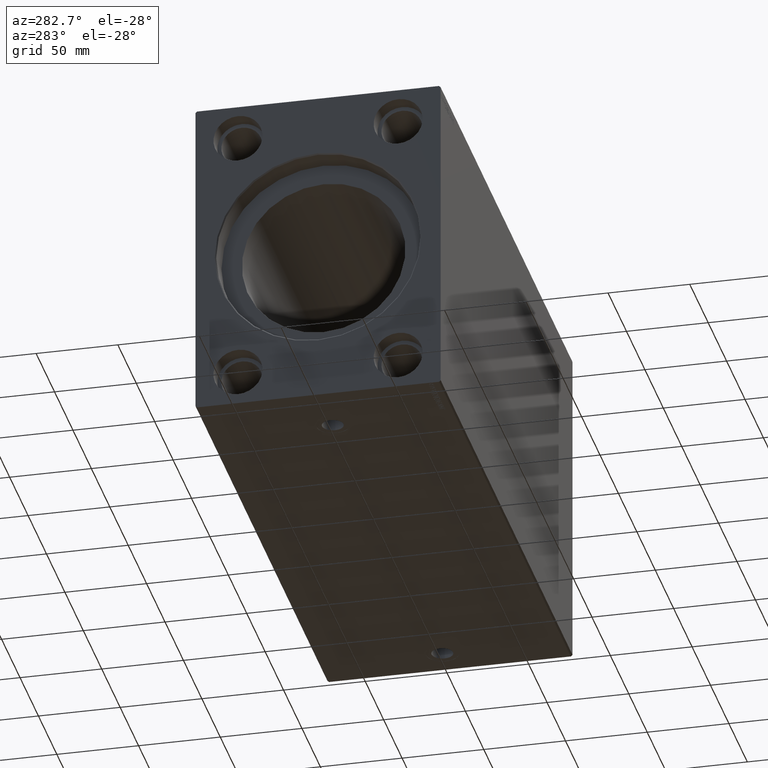
[diagram: clean part render]
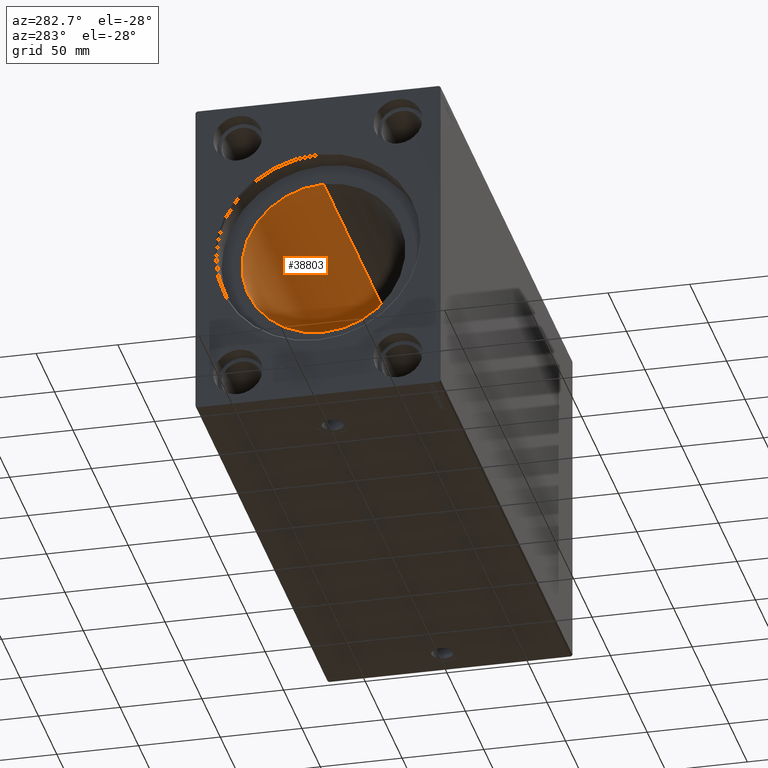
[diagram: same view with one face highlighted and labeled with its STEP entity id]
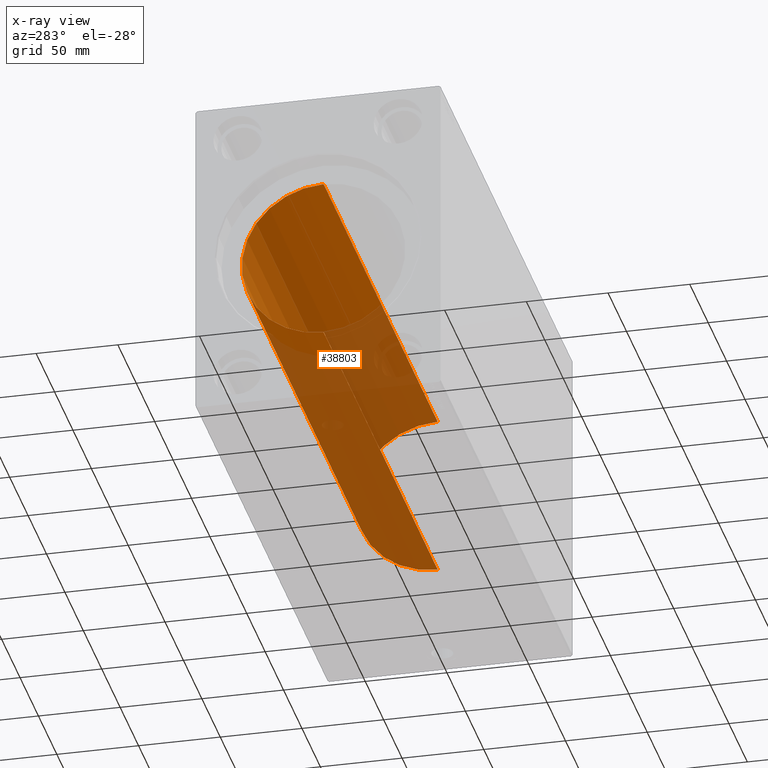
[diagram: x-ray of the same camera — body ghosted, the highlighted face saturated]
A machine part, auxiliary view. The second image highlights one B-rep face of the part: STEP entity #38803.
The next image is the same camera in x-ray: the body ghosted, the highlighted face saturated — about 57% of this face is hidden behind the body in this view.
In plain terms, the highlighted cylindrical surface (partial cylindrical patch) has radius 50 mm, axis along (-1, -0, -0).
Its self-contained STEP definition (entity closure, byte-faithful):
#1809 = VERTEX_POINT ( 'NONE', #38024 ) ;
#3866 = ORIENTED_EDGE ( 'NONE', *, *, #17619, .T. ) ;
#3942 = ORIENTED_EDGE ( 'NONE', *, *, #32519, .F. ) ;
#4194 = AXIS2_PLACEMENT_3D ( 'NONE', #15480, #41669, #38438 ) ;
#4699 = EDGE_LOOP ( 'NONE', ( #3942, #15632, #3866, #14442 ) ) ;
#5375 = VERTEX_POINT ( 'NONE', #31953 ) ;
#7538 = DIRECTION ( 'NONE',  ( 0.000000000000000000, 0.000000000000000000, 1.000000000000000000 ) ) ;
#7854 = CARTESIAN_POINT ( 'NONE',  ( 324.6999999999999886, 6.123233995736766085E-15, -50.00000000000000000 ) ) ;
#9003 = DIRECTION ( 'NONE',  ( 0.000000000000000000, 0.000000000000000000, 1.000000000000000000 ) ) ;
#9193 = VERTEX_POINT ( 'NONE', #24511 ) ;
#11965 = VECTOR ( 'NONE', #17930, 1000.000000000000000 ) ;
#12170 = CARTESIAN_POINT ( 'NONE',  ( 324.6999999999999886, 0.000000000000000000, 50.00000000000000000 ) ) ;
#12544 = AXIS2_PLACEMENT_3D ( 'NONE', #33337, #33127, #7538 ) ;
#14442 = ORIENTED_EDGE ( 'NONE', *, *, #24216, .T. ) ;
#14928 = LINE ( 'NONE', #34250, #11965 ) ;
#15480 = CARTESIAN_POINT ( 'NONE',  ( 324.6999999999999886, 0.000000000000000000, 0.000000000000000000 ) ) ;
#15632 = ORIENTED_EDGE ( 'NONE', *, *, #31936, .F. ) ;
#17619 = EDGE_CURVE ( 'NONE', #23375, #1809, #14928, .T. ) ;
#17930 = DIRECTION ( 'NONE',  ( -1.000000000000000000, -0.000000000000000000, -0.000000000000000000 ) ) ;
#20449 = FACE_OUTER_BOUND ( 'NONE', #4699, .T. ) ;
#20967 = DIRECTION ( 'NONE',  ( -1.000000000000000000, -0.000000000000000000, -0.000000000000000000 ) ) ;
#23375 = VERTEX_POINT ( 'NONE', #12170 ) ;
#24216 = EDGE_CURVE ( 'NONE', #1809, #9193, #37345, .T. ) ;
#24511 = CARTESIAN_POINT ( 'NONE',  ( 15.00000000000001421, 6.123233995736766085E-15, -50.00000000000000000 ) ) ;
#27073 = AXIS2_PLACEMENT_3D ( 'NONE', #40362, #38210, #9003 ) ;
#31936 = EDGE_CURVE ( 'NONE', #23375, #5375, #41231, .T. ) ;
#31953 = CARTESIAN_POINT ( 'NONE',  ( 324.6999999999999886, 6.123233995736766085E-15, -50.00000000000000000 ) ) ;
#32519 = EDGE_CURVE ( 'NONE', #5375, #9193, #37270, .T. ) ;
#33127 = DIRECTION ( 'NONE',  ( -1.000000000000000000, -0.000000000000000000, -0.000000000000000000 ) ) ;
#33337 = CARTESIAN_POINT ( 'NONE',  ( 324.6999999999999886, 0.000000000000000000, 0.000000000000000000 ) ) ;
#34250 = CARTESIAN_POINT ( 'NONE',  ( 324.6999999999999886, 0.000000000000000000, 50.00000000000000000 ) ) ;
#37270 = LINE ( 'NONE', #7854, #39911 ) ;
#37345 = CIRCLE ( 'NONE', #27073, 50.00000000000000000 ) ;
#38024 = CARTESIAN_POINT ( 'NONE',  ( 15.00000000000001421, 0.000000000000000000, 50.00000000000000000 ) ) ;
#38210 = DIRECTION ( 'NONE',  ( -1.000000000000000000, 0.000000000000000000, 0.000000000000000000 ) ) ;
#38438 = DIRECTION ( 'NONE',  ( 0.000000000000000000, 0.000000000000000000, 1.000000000000000000 ) ) ;
#38803 = ADVANCED_FACE ( 'NONE', ( #20449 ), #39762, .F. ) ;
#39762 = CYLINDRICAL_SURFACE ( 'NONE', #12544, 50.00000000000000000 ) ;
#39911 = VECTOR ( 'NONE', #20967, 1000.000000000000000 ) ;
#40362 = CARTESIAN_POINT ( 'NONE',  ( 15.00000000000001421, 0.000000000000000000, 0.000000000000000000 ) ) ;
#41231 = CIRCLE ( 'NONE', #4194, 50.00000000000000000 ) ;
#41669 = DIRECTION ( 'NONE',  ( -1.000000000000000000, 0.000000000000000000, 0.000000000000000000 ) ) ;